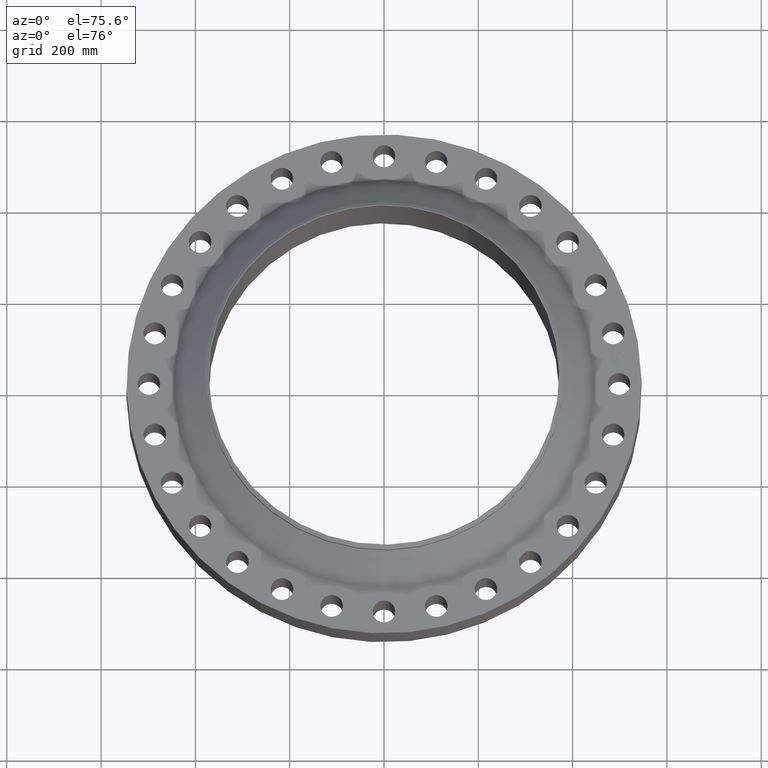
[diagram: clean part render]
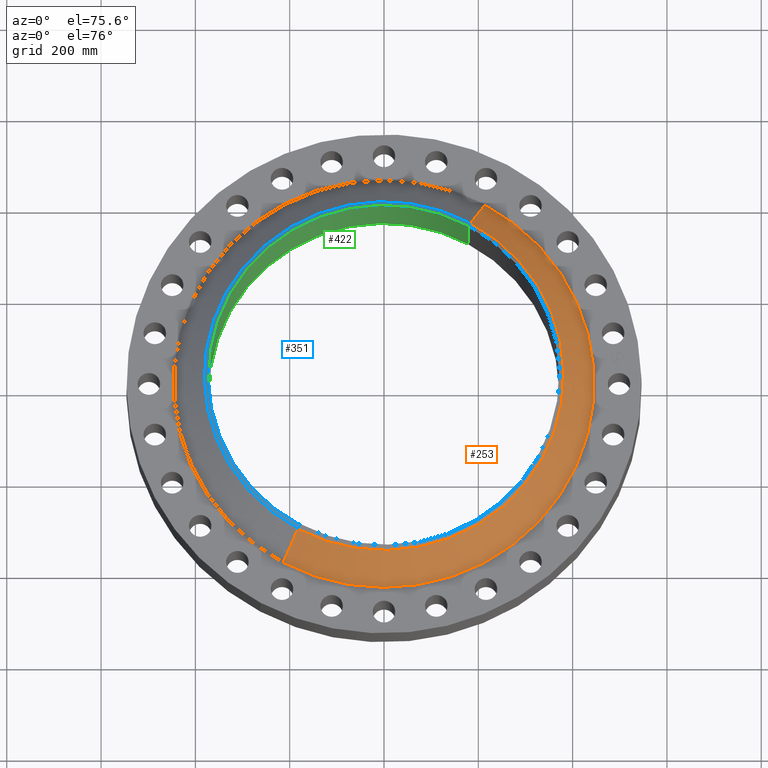
[diagram: same view with three faces highlighted in distinct colors, each labeled with its STEP entity id]
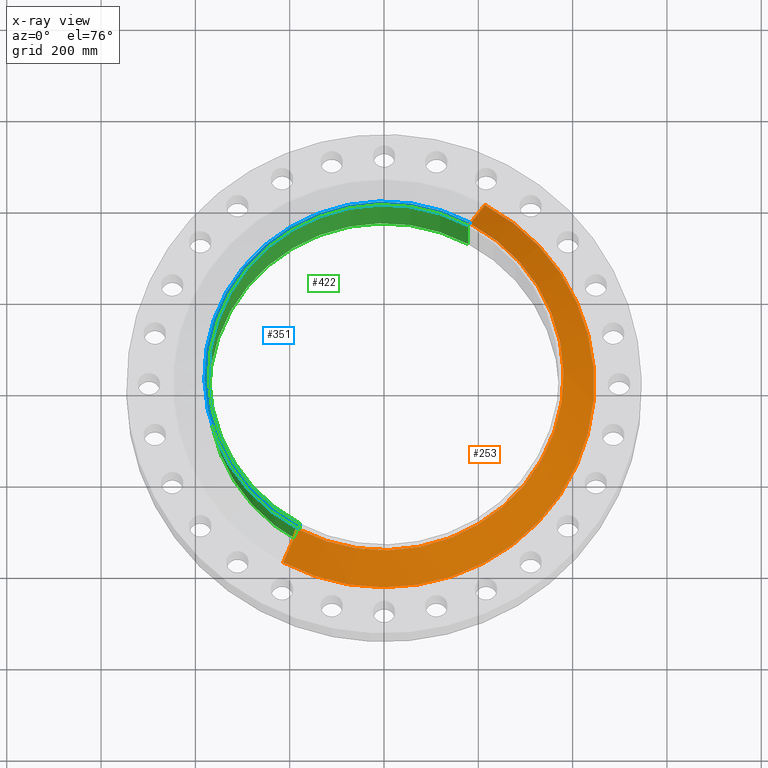
[diagram: x-ray of the same camera — body ghosted, the three highlighted faces saturated]
A machine part, auxiliary view with three faces highlighted in distinct colors.
The next image is the same camera in x-ray (body ghosted, the three faces saturated) — at least one of them is partly hidden behind the body in this view.
Their STEP definitions:

[orange] entity #253 — the highlighted conical surface has half-angle 46.124 deg.
#184=CARTESIAN_POINT('Vertex',(213.742954326,391.253853496,77.9726676825)) ;
#187=CARTESIAN_POINT('Axis2P3D Location',(0.,0.,77.9726676825)) ;
#191=CARTESIAN_POINT('Vertex',(-213.742954326,-391.253853496,77.9726676825)) ;
#223=CARTESIAN_POINT('Axis2P3D Location',(0.,0.,140.309342034)) ;
#228=CARTESIAN_POINT('Line Origine',(198.202042267,362.806404789,109.141004858)) ;
#232=CARTESIAN_POINT('Vertex',(182.661130209,334.358956082,140.309342034)) ;
#235=CARTESIAN_POINT('Axis2P3D Location',(0.,0.,140.309342034)) ;
#239=CARTESIAN_POINT('Vertex',(-182.661130209,-334.358956082,140.309342034)) ;
#242=CARTESIAN_POINT('Line Origine',(-198.202042267,-362.806404789,109.141004858)) ;
#188=DIRECTION('Axis2P3D Direction',(0.,0.,-1.)) ;
#224=DIRECTION('Axis2P3D Direction',(0.,0.,-1.)) ;
#225=DIRECTION('Axis2P3D XDirection',(0.479425538604,0.87758256189,0.)) ;
#229=DIRECTION('Vector Direction',(0.345588978241,0.63259638143,-0.693101779192)) ;
#236=DIRECTION('Axis2P3D Direction',(0.,0.,-1.)) ;
#243=DIRECTION('Vector Direction',(-0.345588978241,-0.63259638143,-0.693101779192)) ;
#189=AXIS2_PLACEMENT_3D('Circle Axis2P3D',#187,#188,$) ;
#226=AXIS2_PLACEMENT_3D('Cone Axis2P3D',#223,#224,#225) ;
#237=AXIS2_PLACEMENT_3D('Circle Axis2P3D',#235,#236,$) ;
#248=ORIENTED_EDGE('',*,*,#193,.F.) ;
#249=ORIENTED_EDGE('',*,*,#234,.T.) ;
#250=ORIENTED_EDGE('',*,*,#241,.T.) ;
#251=ORIENTED_EDGE('',*,*,#246,.F.) ;
#230=VECTOR('Line Direction',#229,1.) ;
#244=VECTOR('Line Direction',#243,1.) ;
#253=ADVANCED_FACE('PartBody',(#252),#227,.T.) ;
#190=CIRCLE('generated circle',#189,445.831390101) ;
#238=CIRCLE('generated circle',#237,381.000000002) ;
#227=CONICAL_SURFACE('Cone',#226,381.000000002,0.80501311788) ;
#193=EDGE_CURVE('',#185,#192,#190,.T.) ;
#234=EDGE_CURVE('',#185,#233,#231,.F.) ;
#241=EDGE_CURVE('',#233,#240,#238,.T.) ;
#246=EDGE_CURVE('',#192,#240,#245,.F.) ;
#247=EDGE_LOOP('',(#248,#249,#250,#251)) ;
#252=FACE_OUTER_BOUND('',#247,.T.) ;
#231=LINE('Line',#228,#230) ;
#245=LINE('Line',#242,#244) ;
#185=VERTEX_POINT('',#184) ;
#192=VERTEX_POINT('',#191) ;
#233=VERTEX_POINT('',#232) ;
#240=VERTEX_POINT('',#239) ;

[blue] entity #351 — the highlighted conical surface has half-angle 52.5 deg.
#275=CARTESIAN_POINT('Vertex',(-182.661130209,-334.358956082,146.309342034)) ;
#282=CARTESIAN_POINT('Vertex',(182.661130209,334.358956082,146.309342034)) ;
#297=CARTESIAN_POINT('Axis2P3D Location',(0.,0.,146.309342034)) ;
#309=CARTESIAN_POINT('Axis2P3D Location',(0.,0.,152.400000001)) ;
#314=CARTESIAN_POINT('Line Origine',(182.893922437,334.785079397,145.936754958)) ;
#318=CARTESIAN_POINT('Vertex',(178.855689996,327.393144497,152.400000001)) ;
#325=CARTESIAN_POINT('Vertex',(-178.855689996,-327.393144497,152.400000001)) ;
#328=CARTESIAN_POINT('Line Origine',(-182.893922437,-334.785079397,145.936754958)) ;
#340=CARTESIAN_POINT('Axis2P3D Location',(0.,0.,152.400000001)) ;
#298=DIRECTION('Axis2P3D Direction',(0.,0.,-1.)) ;
#310=DIRECTION('Axis2P3D Direction',(-0.,-0.,-1.)) ;
#311=DIRECTION('Axis2P3D XDirection',(0.479425538604,0.87758256189,0.)) ;
#315=DIRECTION('Vector Direction',(0.380353852473,0.696233056857,-0.608761429009)) ;
#329=DIRECTION('Vector Direction',(-0.380353852473,-0.696233056857,-0.608761429009)) ;
#341=DIRECTION('Axis2P3D Direction',(0.,-0.,-1.)) ;
#299=AXIS2_PLACEMENT_3D('Circle Axis2P3D',#297,#298,$) ;
#312=AXIS2_PLACEMENT_3D('Cone Axis2P3D',#309,#310,#311) ;
#342=AXIS2_PLACEMENT_3D('Circle Axis2P3D',#340,#341,$) ;
#346=ORIENTED_EDGE('',*,*,#332,.F.) ;
#347=ORIENTED_EDGE('',*,*,#344,.T.) ;
#348=ORIENTED_EDGE('',*,*,#320,.T.) ;
#349=ORIENTED_EDGE('',*,*,#301,.F.) ;
#316=VECTOR('Line Direction',#315,1.) ;
#330=VECTOR('Line Direction',#329,1.) ;
#351=ADVANCED_FACE('PartBody',(#350),#313,.T.) ;
#300=CIRCLE('generated circle',#299,381.000000002) ;
#343=CIRCLE('generated circle',#342,373.062500001) ;
#313=CONICAL_SURFACE('Cone',#312,373.062500001,0.916297857297) ;
#301=EDGE_CURVE('',#276,#283,#300,.T.) ;
#320=EDGE_CURVE('',#319,#283,#317,.T.) ;
#332=EDGE_CURVE('',#326,#276,#331,.T.) ;
#344=EDGE_CURVE('',#326,#319,#343,.T.) ;
#345=EDGE_LOOP('',(#346,#347,#348,#349)) ;
#350=FACE_OUTER_BOUND('',#345,.T.) ;
#317=LINE('Line',#314,#316) ;
#331=LINE('Line',#328,#330) ;
#276=VERTEX_POINT('',#275) ;
#283=VERTEX_POINT('',#282) ;
#319=VERTEX_POINT('',#318) ;
#326=VERTEX_POINT('',#325) ;

[green] entity #422 — the highlighted cylindrical surface (partial cylindrical patch) has radius 371.475 mm, axis along (0, 0, -1).
#361=CARTESIAN_POINT('Axis2P3D Location',(0.,0.,152.400000001)) ;
#365=CARTESIAN_POINT('Vertex',(-178.094601954,-325.99998218,152.400000001)) ;
#367=CARTESIAN_POINT('Vertex',(178.094601954,325.99998218,152.400000001)) ;
#380=CARTESIAN_POINT('Axis2P3D Location',(0.,0.,76.6762500003)) ;
#385=CARTESIAN_POINT('Line Origine',(178.094601954,325.99998218,76.6762500003)) ;
#389=CARTESIAN_POINT('Vertex',(178.094601954,325.99998218,-1.58750000001)) ;
#396=CARTESIAN_POINT('Vertex',(-178.094601954,-325.99998218,-1.58750000001)) ;
#399=CARTESIAN_POINT('Line Origine',(-178.094601954,-325.99998218,76.6762500003)) ;
#411=CARTESIAN_POINT('Axis2P3D Location',(0.,0.,-1.58750000001)) ;
#362=DIRECTION('Axis2P3D Direction',(0.,-0.,-1.)) ;
#381=DIRECTION('Axis2P3D Direction',(0.,0.,-1.)) ;
#382=DIRECTION('Axis2P3D XDirection',(0.479425538604,0.87758256189,0.)) ;
#386=DIRECTION('Vector Direction',(0.,0.,-1.)) ;
#400=DIRECTION('Vector Direction',(0.,0.,-1.)) ;
#412=DIRECTION('Axis2P3D Direction',(0.,0.,-1.)) ;
#363=AXIS2_PLACEMENT_3D('Circle Axis2P3D',#361,#362,$) ;
#383=AXIS2_PLACEMENT_3D('Cylinder Axis2P3D',#380,#381,#382) ;
#413=AXIS2_PLACEMENT_3D('Circle Axis2P3D',#411,#412,$) ;
#417=ORIENTED_EDGE('',*,*,#403,.T.) ;
#418=ORIENTED_EDGE('',*,*,#415,.T.) ;
#419=ORIENTED_EDGE('',*,*,#391,.F.) ;
#420=ORIENTED_EDGE('',*,*,#369,.F.) ;
#387=VECTOR('Line Direction',#386,1.) ;
#401=VECTOR('Line Direction',#400,1.) ;
#422=ADVANCED_FACE('PartBody',(#421),#384,.F.) ;
#364=CIRCLE('generated circle',#363,371.475000001) ;
#414=CIRCLE('generated circle',#413,371.475000001) ;
#384=CYLINDRICAL_SURFACE('generated cylinder',#383,371.475000001) ;
#369=EDGE_CURVE('',#366,#368,#364,.T.) ;
#391=EDGE_CURVE('',#368,#390,#388,.T.) ;
#403=EDGE_CURVE('',#366,#397,#402,.T.) ;
#415=EDGE_CURVE('',#397,#390,#414,.T.) ;
#416=EDGE_LOOP('',(#417,#418,#419,#420)) ;
#421=FACE_OUTER_BOUND('',#416,.T.) ;
#388=LINE('Line',#385,#387) ;
#402=LINE('Line',#399,#401) ;
#366=VERTEX_POINT('',#365) ;
#368=VERTEX_POINT('',#367) ;
#390=VERTEX_POINT('',#389) ;
#397=VERTEX_POINT('',#396) ;